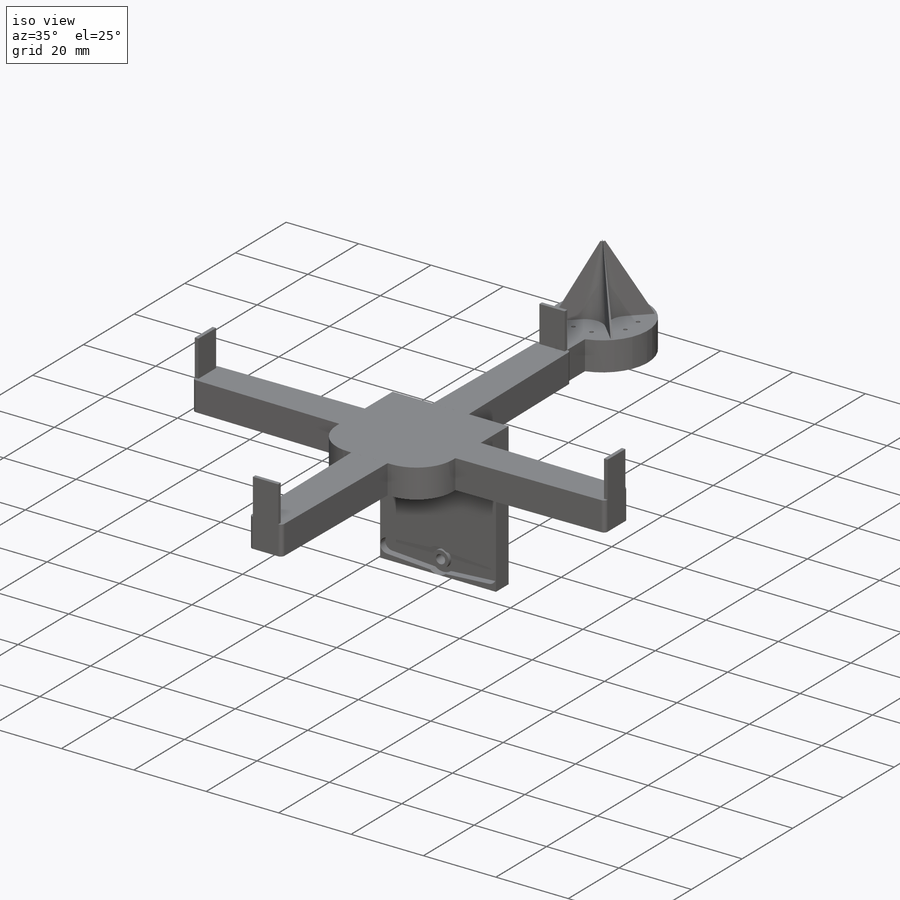
[diagram: iso view]
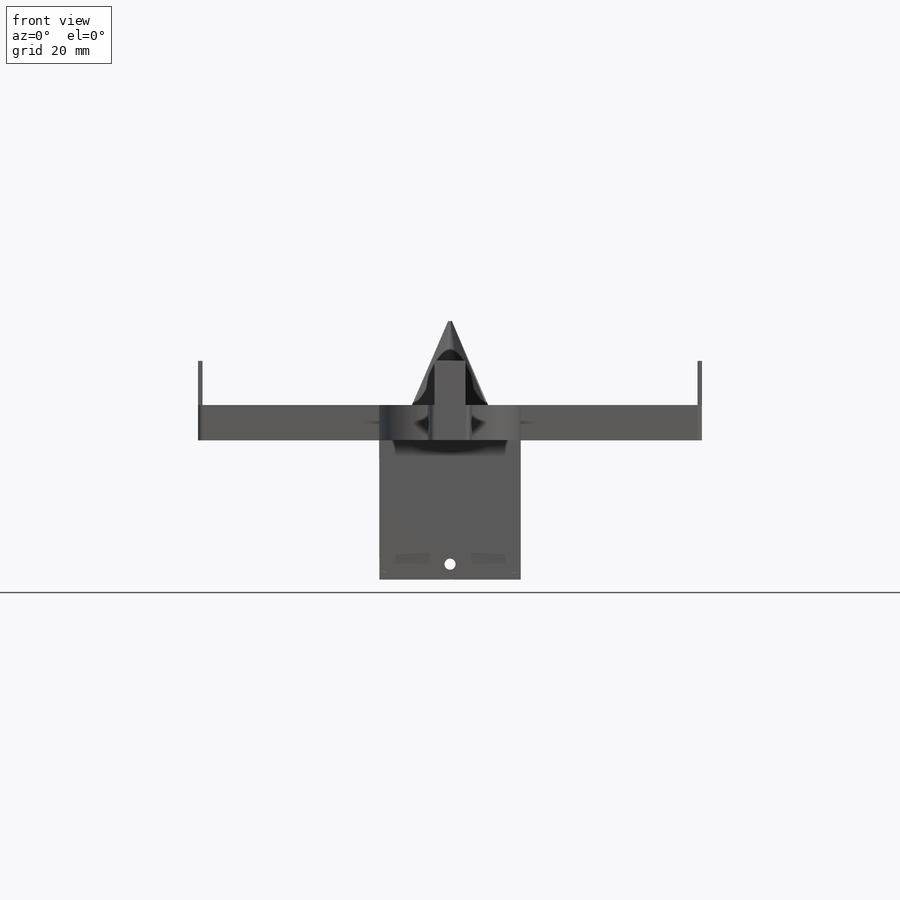
[diagram: front view]
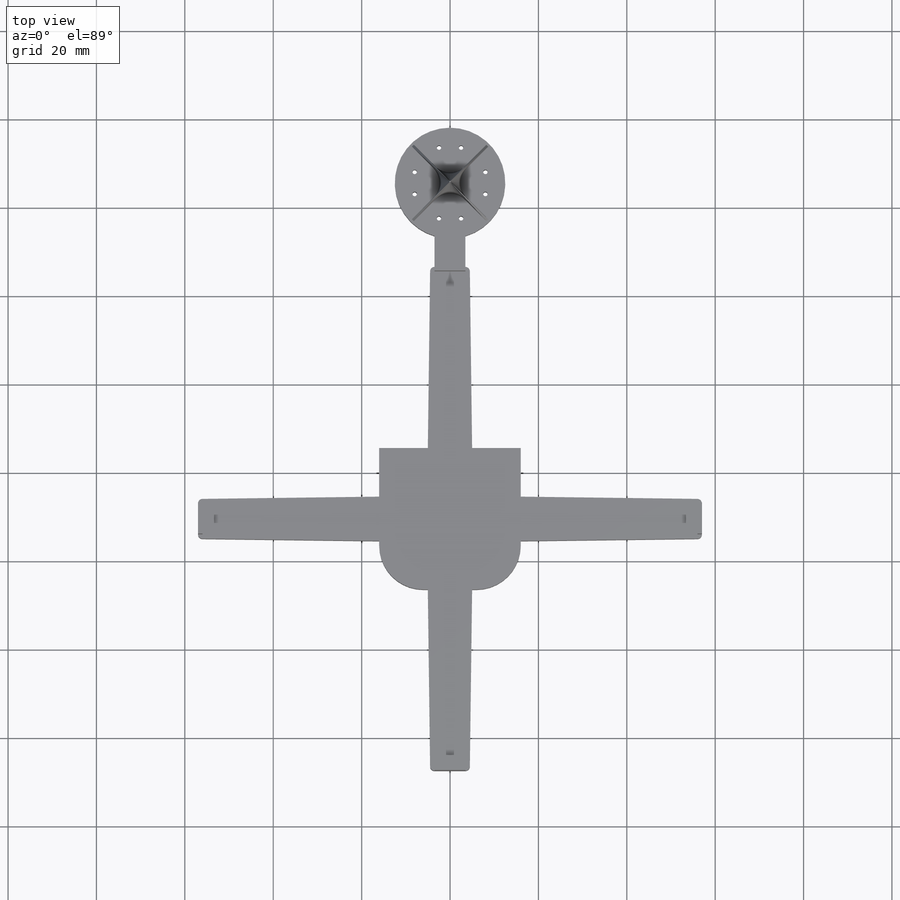
[diagram: top view]
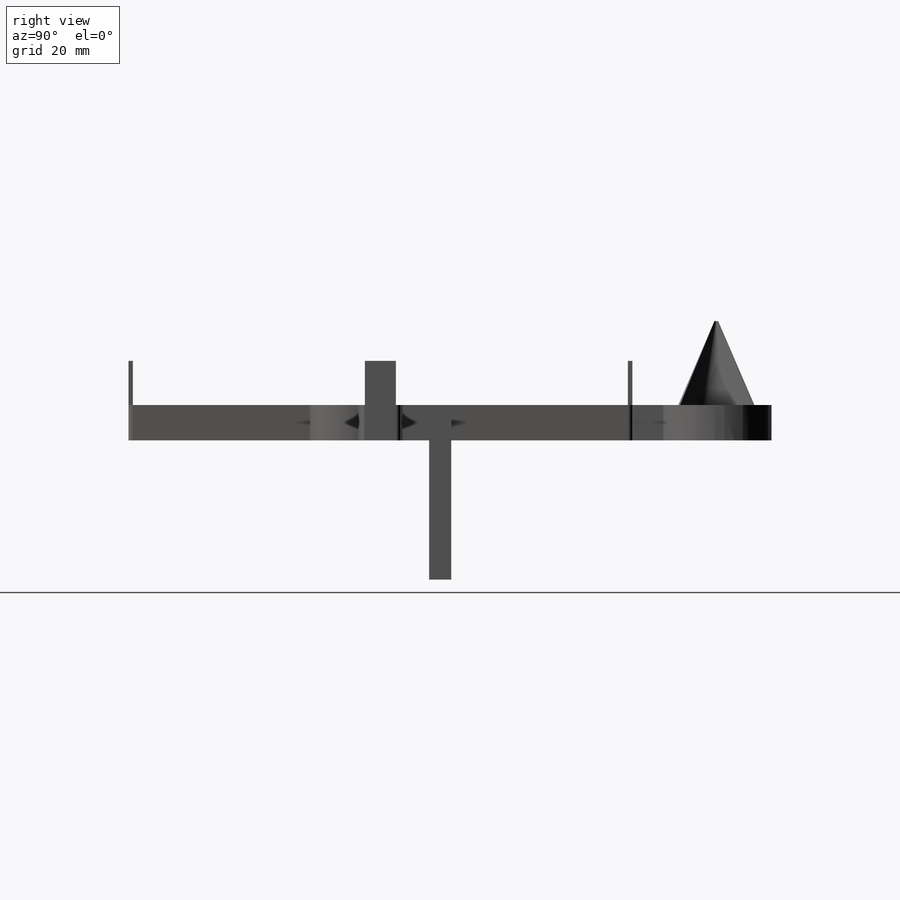
[diagram: right view]
SOLIDWORKS PART (.sldprt)
format: sldprt  version: not decoded by parser v0  size: 534,016 bytes
history: native  units: mm
features: sketch x11, extrude x7, plane x2, cut_extrude x2, material x1, fillet x1 (+13 scaffold rows collapsed)
feature tree (37):
  scaffold x13  (default folders/planes/origin — collapsed)
  material  "Material <not specified>"
  sketch  "Sketch1"  dims[c1.D1=7.0mm c1.D2=4.5mm c1.D4=~1.247036mm c1.D5=2.0mm c1.D6=1.0mm c1.D7=1.0mm c1.D10=2.5mm c1.D11=7.0mm c1.D3=5.5mm c2.D4=28.0mm c2.D6=4.5mm c2.D9=29.0mm c2.D11=10.0mm c2.D12=~32.044429mm c2.D13=12.0mm c2.D14=3.0mm c3.D11=28.0mm c3.D15=8.0mm]
  extrude  "Boss-Extrude29"  Depth=27.02mm
  extrude  "Boss-Extrude31"  [1 undecoded]
  sketch  "Sketch1<12>"  dims[D1=5.0mm]
  extrude  "Boss-Extrude104"  [1 undecoded]
  sketch  "Sketch1<23>"  dims[D1=3.0mm D19=3.5mm]
  extrude  "Boss-Extrude105"  [1 undecoded]
  sketch  "Sketch1<24>"  dims[D1=2.0mm D19=1.0mm]
  sketch  "Sketch7"  dims[c1.1=1.0mm c1.D8=1.0mm c1.D1=29.0mm c1.D2=40.0mm c1.D3=40.0mm c2.D1=32.04mm c2.D2=11.0mm c2.D3=11.0mm c2.D4=10.0mm c2.D5=10.0mm c2.D6=40.0mm c2.D7=40.0mm c2.D9=7.0mm c3.D4=14.5mm c3.D5=~29.044429mm c4.D4=16.02mm c4.D5=~32.044429mm c4.D1=11.0mm c4.D2=11.0mm c4.D3=11.0mm c4.D10=~11.000012mm c5.D5=4.0]
  extrude  "Boss-Extrude106"  Depth=8mm
  fillet  "Fillet2"  Radius=10mm
  sketch  "Sketch8"  dims[D1=25.0mm D3=10.0mm D4=10.0mm D2=7.0mm]
  plane  "Plane2"  Offset=20mm
  sketch  "Sketch10"
  extrude  "Boss-Extrude107"  Depth=8mm
  plane  "Plane3"  Offset=1mm
  sketch  "Sketch14"
  sketch  "Sketch15"  dims[D1=1.0mm]
  cut_extrude  "Cut-Extrude2"  Depth=1mm
  sketch  "Sketch16"  dims[D1=16.01mm D3=7.0mm D2=4.0]
  extrude  "Boss-Extrude108"  Depth=10mm
  sketch  "Sketch17"  dims[c1.D3=12.5mm c1.D4=1.0mm c1.D6=1.0mm c1.D1=5.0mm c1.D2=2.5mm c2.D3=8.0mm c2.D6=5.0mm c2.D5=4.0]
  cut_extrude  "Cut-Extrude3"  [1 undecoded]
decode coverage: 15 of 21 modeling features carry decoded parameters
note: ~ marks probable driven/reference dimensions
note: 4 parameter values undecoded
summary: no parameter record found for 4 features
note: suppression state not decoded; provenance and decode notes live in map.json
